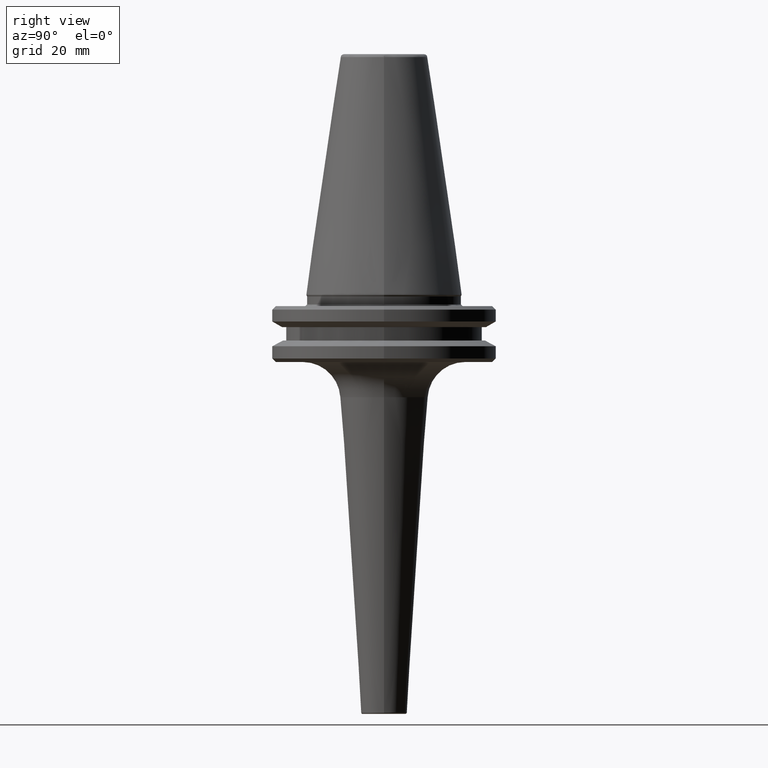
[diagram: clean part render]
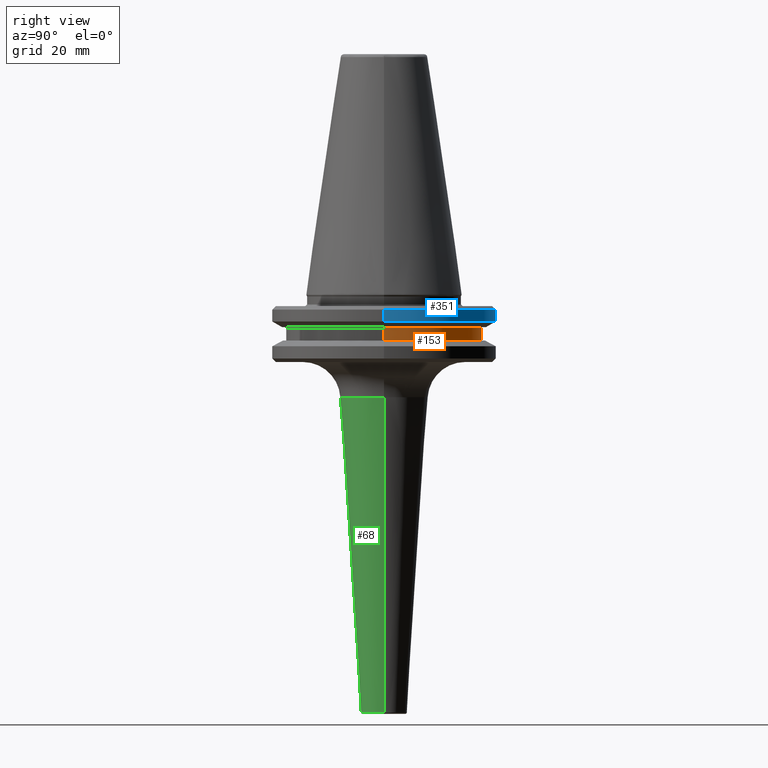
[diagram: same view with three faces highlighted in distinct colors, each labeled with its STEP entity id]
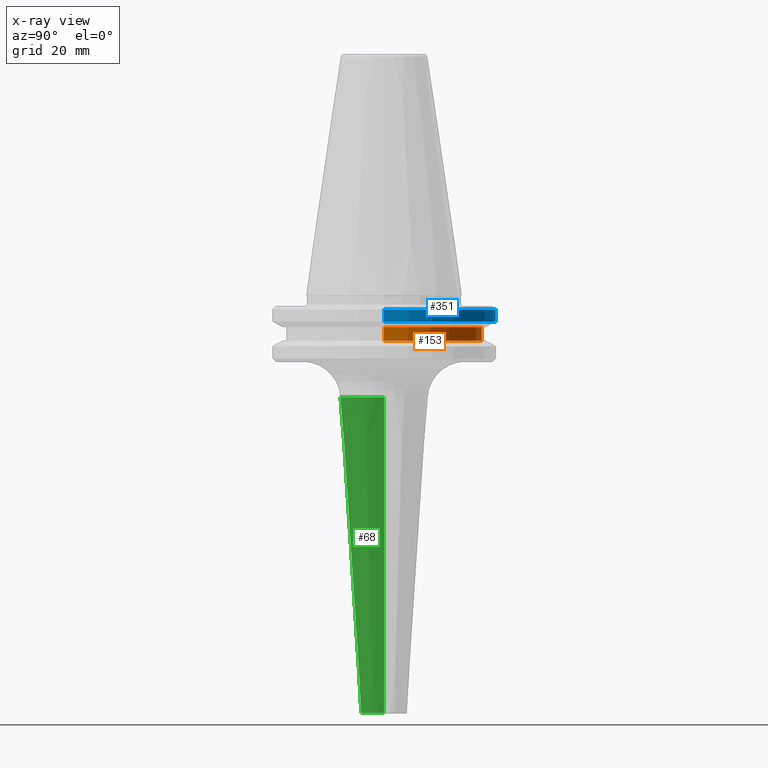
[diagram: x-ray of the same camera — body ghosted, the three highlighted faces saturated]
A machine part, right view with three faces highlighted in distinct colors.
The next image is the same camera in x-ray (body ghosted, the three faces saturated) — at least one of them is partly hidden behind the body in this view.
Their STEP definitions:

[orange] entity #153 — the highlighted cylindrical surface (partial cylindrical patch) has radius 28 mm, axis along (0, 0, 1).
#22 = DIRECTION ( 'NONE',  ( 1.000000000000000000, 0.0000000000000000000, 0.0000000000000000000 ) ) ;
#54 = DIRECTION ( 'NONE',  ( 0.0000000000000000000, 0.0000000000000000000, 1.000000000000000000 ) ) ;
#78 = DIRECTION ( 'NONE',  ( 0.0000000000000000000, 0.0000000000000000000, 1.000000000000000000 ) ) ;
#102 = CARTESIAN_POINT ( 'NONE',  ( 28.00000000000000000, 0.0000000000000000000, -13.00000000000001100 ) ) ;
#128 = EDGE_CURVE ( 'NONE', #593, #1051, #816, .T. ) ;
#145 = FACE_OUTER_BOUND ( 'NONE', #1256, .T. ) ;
#153 = ADVANCED_FACE ( 'NONE', ( #145 ), #378, .T. ) ;
#270 = CARTESIAN_POINT ( 'NONE',  ( 0.0000000000000000000, 0.0000000000000000000, -13.00000000000001100 ) ) ;
#276 = EDGE_CURVE ( 'NONE', #593, #856, #297, .T. ) ;
#297 = LINE ( 'NONE', #984, #592 ) ;
#343 = EDGE_CURVE ( 'NONE', #1051, #785, #767, .T. ) ;
#378 = CYLINDRICAL_SURFACE ( 'NONE', #973, 28.00000000000000000 ) ;
#393 = ORIENTED_EDGE ( 'NONE', *, *, #343, .T. ) ;
#399 = DIRECTION ( 'NONE',  ( 1.000000000000000000, 0.0000000000000000000, 0.0000000000000000000 ) ) ;
#418 = EDGE_CURVE ( 'NONE', #785, #856, #709, .T. ) ;
#524 = DIRECTION ( 'NONE',  ( -0.0000000000000000000, -0.0000000000000000000, -1.000000000000000000 ) ) ;
#561 = AXIS2_PLACEMENT_3D ( 'NONE', #1079, #524, #1169 ) ;
#582 = DIRECTION ( 'NONE',  ( 0.0000000000000000000, 0.0000000000000000000, 1.000000000000000000 ) ) ;
#586 = CARTESIAN_POINT ( 'NONE',  ( -28.00000000000000000, 3.429011037612589300E-015, -9.199999999999999300 ) ) ;
#592 = VECTOR ( 'NONE', #582, 1000.000000000000000 ) ;
#593 = VERTEX_POINT ( 'NONE', #102 ) ;
#627 = ORIENTED_EDGE ( 'NONE', *, *, #276, .F. ) ;
#709 = CIRCLE ( 'NONE', #561, 28.00000000000000000 ) ;
#729 = CARTESIAN_POINT ( 'NONE',  ( -28.00000000000000000, 3.429011037612589300E-015, 113.5216080541959500 ) ) ;
#767 = LINE ( 'NONE', #729, #1227 ) ;
#769 = ORIENTED_EDGE ( 'NONE', *, *, #418, .T. ) ;
#785 = VERTEX_POINT ( 'NONE', #586 ) ;
#816 = CIRCLE ( 'NONE', #1100, 28.00000000000000000 ) ;
#826 = CARTESIAN_POINT ( 'NONE',  ( 28.00000000000000000, 0.0000000000000000000, -9.199999999999999300 ) ) ;
#856 = VERTEX_POINT ( 'NONE', #826 ) ;
#973 = AXIS2_PLACEMENT_3D ( 'NONE', #1152, #1061, #22 ) ;
#984 = CARTESIAN_POINT ( 'NONE',  ( 28.00000000000000000, 0.0000000000000000000, 113.5216080541959500 ) ) ;
#1009 = ORIENTED_EDGE ( 'NONE', *, *, #128, .T. ) ;
#1051 = VERTEX_POINT ( 'NONE', #1264 ) ;
#1061 = DIRECTION ( 'NONE',  ( 0.0000000000000000000, 0.0000000000000000000, 1.000000000000000000 ) ) ;
#1079 = CARTESIAN_POINT ( 'NONE',  ( 0.0000000000000000000, 0.0000000000000000000, -9.199999999999999300 ) ) ;
#1100 = AXIS2_PLACEMENT_3D ( 'NONE', #270, #54, #399 ) ;
#1152 = CARTESIAN_POINT ( 'NONE',  ( 0.0000000000000000000, 0.0000000000000000000, 113.5216080541959500 ) ) ;
#1169 = DIRECTION ( 'NONE',  ( 1.000000000000000000, 0.0000000000000000000, 0.0000000000000000000 ) ) ;
#1227 = VECTOR ( 'NONE', #78, 1000.000000000000000 ) ;
#1256 = EDGE_LOOP ( 'NONE', ( #1009, #393, #769, #627 ) ) ;
#1264 = CARTESIAN_POINT ( 'NONE',  ( -28.00000000000000000, 3.429011037612589300E-015, -13.00000000000001100 ) ) ;

[blue] entity #351 — the highlighted cylindrical surface (partial cylindrical patch) has radius 31.75 mm, axis along (0, 0, 1).
#4 = VERTEX_POINT ( 'NONE', #558 ) ;
#10 = CARTESIAN_POINT ( 'NONE',  ( -31.75000000000000000, 3.888253587292849600E-015, -7.578163357943284800 ) ) ;
#27 = CIRCLE ( 'NONE', #202, 31.74999999999994300 ) ;
#60 = VECTOR ( 'NONE', #98, 1000.000000000000000 ) ;
#98 = DIRECTION ( 'NONE',  ( 0.0000000000000000000, 0.0000000000000000000, 1.000000000000000000 ) ) ;
#132 = VERTEX_POINT ( 'NONE', #803 ) ;
#149 = DIRECTION ( 'NONE',  ( 1.000000000000000000, 0.0000000000000000000, 0.0000000000000000000 ) ) ;
#195 = CARTESIAN_POINT ( 'NONE',  ( -31.75000000000000000, 3.888253587292846500E-015, 113.5216080541959500 ) ) ;
#202 = AXIS2_PLACEMENT_3D ( 'NONE', #1008, #438, #1097 ) ;
#215 = ORIENTED_EDGE ( 'NONE', *, *, #560, .T. ) ;
#225 = ORIENTED_EDGE ( 'NONE', *, *, #576, .F. ) ;
#313 = CARTESIAN_POINT ( 'NONE',  ( 0.0000000000000000000, 0.0000000000000000000, -7.578163357943284800 ) ) ;
#325 = CARTESIAN_POINT ( 'NONE',  ( 31.75000000000000000, 0.0000000000000000000, 113.5216080541959500 ) ) ;
#344 = ORIENTED_EDGE ( 'NONE', *, *, #602, .F. ) ;
#351 = ADVANCED_FACE ( 'NONE', ( #523 ), #966, .T. ) ;
#386 = CARTESIAN_POINT ( 'NONE',  ( -31.75000000000003600, 0.0000000000000000000, -4.200000000000036600 ) ) ;
#400 = CIRCLE ( 'NONE', #1234, 31.75000000000000000 ) ;
#431 = DIRECTION ( 'NONE',  ( 1.000000000000000000, 0.0000000000000000000, 0.0000000000000000000 ) ) ;
#436 = DIRECTION ( 'NONE',  ( 0.0000000000000000000, 0.0000000000000000000, 1.000000000000000000 ) ) ;
#438 = DIRECTION ( 'NONE',  ( -0.0000000000000000000, -0.0000000000000000000, 1.000000000000000000 ) ) ;
#450 = CARTESIAN_POINT ( 'NONE',  ( 31.75000000000003600, 3.888253587292850400E-015, -4.200000000000036600 ) ) ;
#523 = FACE_OUTER_BOUND ( 'NONE', #906, .T. ) ;
#528 = EDGE_CURVE ( 'NONE', #132, #4, #1149, .T. ) ;
#551 = ORIENTED_EDGE ( 'NONE', *, *, #528, .T. ) ;
#556 = EDGE_CURVE ( 'NONE', #4, #697, #400, .T. ) ;
#558 = CARTESIAN_POINT ( 'NONE',  ( 3.888253587292846500E-015, 31.75000000000000000, -7.578163357943284800 ) ) ;
#560 = EDGE_CURVE ( 'NONE', #697, #1223, #1120, .T. ) ;
#574 = LINE ( 'NONE', #325, #838 ) ;
#576 = EDGE_CURVE ( 'NONE', #672, #1223, #27, .T. ) ;
#602 = EDGE_CURVE ( 'NONE', #132, #672, #574, .T. ) ;
#633 = ORIENTED_EDGE ( 'NONE', *, *, #556, .T. ) ;
#672 = VERTEX_POINT ( 'NONE', #450 ) ;
#697 = VERTEX_POINT ( 'NONE', #10 ) ;
#803 = CARTESIAN_POINT ( 'NONE',  ( 31.75000000000000000, 0.0000000000000000000, -7.578163357943284800 ) ) ;
#833 = AXIS2_PLACEMENT_3D ( 'NONE', #977, #1065, #149 ) ;
#838 = VECTOR ( 'NONE', #845, 1000.000000000000000 ) ;
#845 = DIRECTION ( 'NONE',  ( 0.0000000000000000000, 0.0000000000000000000, 1.000000000000000000 ) ) ;
#906 = EDGE_LOOP ( 'NONE', ( #551, #633, #215, #225, #344 ) ) ;
#922 = AXIS2_PLACEMENT_3D ( 'NONE', #313, #999, #431 ) ;
#966 = CYLINDRICAL_SURFACE ( 'NONE', #833, 31.75000000000000000 ) ;
#977 = CARTESIAN_POINT ( 'NONE',  ( 0.0000000000000000000, 0.0000000000000000000, 113.5216080541959500 ) ) ;
#999 = DIRECTION ( 'NONE',  ( 0.0000000000000000000, 0.0000000000000000000, 1.000000000000000000 ) ) ;
#1003 = CARTESIAN_POINT ( 'NONE',  ( 0.0000000000000000000, 0.0000000000000000000, -7.578163357943284800 ) ) ;
#1008 = CARTESIAN_POINT ( 'NONE',  ( 0.0000000000000000000, 0.0000000000000000000, -4.200000000000036600 ) ) ;
#1065 = DIRECTION ( 'NONE',  ( 0.0000000000000000000, 0.0000000000000000000, 1.000000000000000000 ) ) ;
#1092 = DIRECTION ( 'NONE',  ( 1.000000000000000000, 0.0000000000000000000, 0.0000000000000000000 ) ) ;
#1097 = DIRECTION ( 'NONE',  ( 1.000000000000000000, 0.0000000000000000000, 0.0000000000000000000 ) ) ;
#1120 = LINE ( 'NONE', #195, #60 ) ;
#1149 = CIRCLE ( 'NONE', #922, 31.75000000000000000 ) ;
#1223 = VERTEX_POINT ( 'NONE', #386 ) ;
#1234 = AXIS2_PLACEMENT_3D ( 'NONE', #1003, #436, #1092 ) ;

[green] entity #68 — the highlighted conical surface has half-angle 3.814 deg.
#56 = EDGE_LOOP ( 'NONE', ( #517, #824, #998, #272 ) ) ;
#68 = ADVANCED_FACE ( 'NONE', ( #281 ), #784, .T. ) ;
#157 = CARTESIAN_POINT ( 'NONE',  ( 0.0000000000000000000, 0.0000000000000000000, -118.7266076041965200 ) ) ;
#175 = CARTESIAN_POINT ( 'NONE',  ( -6.524892826389320900, 7.990689114617208800E-016, -118.7266076041965200 ) ) ;
#186 = VERTEX_POINT ( 'NONE', #1124 ) ;
#197 = LINE ( 'NONE', #348, #1211 ) ;
#208 = EDGE_CURVE ( 'NONE', #1170, #447, #659, .T. ) ;
#223 = DIRECTION ( 'NONE',  ( 0.06651901052381420400, 0.0000000000000000000, 0.9977851578566062600 ) ) ;
#237 = DIRECTION ( 'NONE',  ( 1.000000000000000000, 0.0000000000000000000, 0.0000000000000000000 ) ) ;
#243 = VERTEX_POINT ( 'NONE', #902 ) ;
#269 = EDGE_CURVE ( 'NONE', #447, #186, #880, .T. ) ;
#272 = ORIENTED_EDGE ( 'NONE', *, *, #269, .F. ) ;
#281 = FACE_OUTER_BOUND ( 'NONE', #56, .T. ) ;
#287 = DIRECTION ( 'NONE',  ( 1.000000000000000000, 0.0000000000000000000, 0.0000000000000000000 ) ) ;
#339 = CARTESIAN_POINT ( 'NONE',  ( -6.524892826389320900, 7.990689114617208800E-016, -118.7266076041965200 ) ) ;
#348 = CARTESIAN_POINT ( 'NONE',  ( 6.524892826389320900, 0.0000000000000000000, -118.7266076041965200 ) ) ;
#421 = CIRCLE ( 'NONE', #520, 6.524892826389320900 ) ;
#447 = VERTEX_POINT ( 'NONE', #1259 ) ;
#517 = ORIENTED_EDGE ( 'NONE', *, *, #208, .F. ) ;
#520 = AXIS2_PLACEMENT_3D ( 'NONE', #583, #581, #287 ) ;
#581 = DIRECTION ( 'NONE',  ( -0.0000000000000000000, -0.0000000000000000000, 1.000000000000000000 ) ) ;
#583 = CARTESIAN_POINT ( 'NONE',  ( 0.0000000000000000000, 0.0000000000000000000, -118.7266076041965200 ) ) ;
#659 = LINE ( 'NONE', #175, #1133 ) ;
#685 = EDGE_CURVE ( 'NONE', #243, #186, #197, .T. ) ;
#689 = DIRECTION ( 'NONE',  ( -0.0000000000000000000, -0.0000000000000000000, 1.000000000000000000 ) ) ;
#784 = CONICAL_SURFACE ( 'NONE', #1148, 6.524892826389320900, 0.06656816377586416400 ) ;
#819 = DIRECTION ( 'NONE',  ( -0.06651901052381420400, 8.146229332043816600E-018, 0.9977851578566062600 ) ) ;
#824 = ORIENTED_EDGE ( 'NONE', *, *, #1179, .T. ) ;
#880 = CIRCLE ( 'NONE', #1089, 12.50000000000000000 ) ;
#902 = CARTESIAN_POINT ( 'NONE',  ( 6.524892826389320900, 0.0000000000000000000, -118.7266076041965200 ) ) ;
#998 = ORIENTED_EDGE ( 'NONE', *, *, #685, .T. ) ;
#1000 = DIRECTION ( 'NONE',  ( 1.000000000000000000, 0.0000000000000000000, 0.0000000000000000000 ) ) ;
#1089 = AXIS2_PLACEMENT_3D ( 'NONE', #1217, #689, #237 ) ;
#1124 = CARTESIAN_POINT ( 'NONE',  ( 12.50000000000000000, 0.0000000000000000000, -29.10000000009080900 ) ) ;
#1133 = VECTOR ( 'NONE', #819, 1000.000000000000000 ) ;
#1148 = AXIS2_PLACEMENT_3D ( 'NONE', #157, #1226, #1000 ) ;
#1170 = VERTEX_POINT ( 'NONE', #339 ) ;
#1179 = EDGE_CURVE ( 'NONE', #1170, #243, #421, .T. ) ;
#1211 = VECTOR ( 'NONE', #223, 1000.000000000000000 ) ;
#1217 = CARTESIAN_POINT ( 'NONE',  ( 0.0000000000000000000, 0.0000000000000000000, -29.10000000009080900 ) ) ;
#1226 = DIRECTION ( 'NONE',  ( -0.0000000000000000000, -0.0000000000000000000, 1.000000000000000000 ) ) ;
#1259 = CARTESIAN_POINT ( 'NONE',  ( -12.50000000000000000, 1.530808498934191700E-015, -29.10000000009080900 ) ) ;